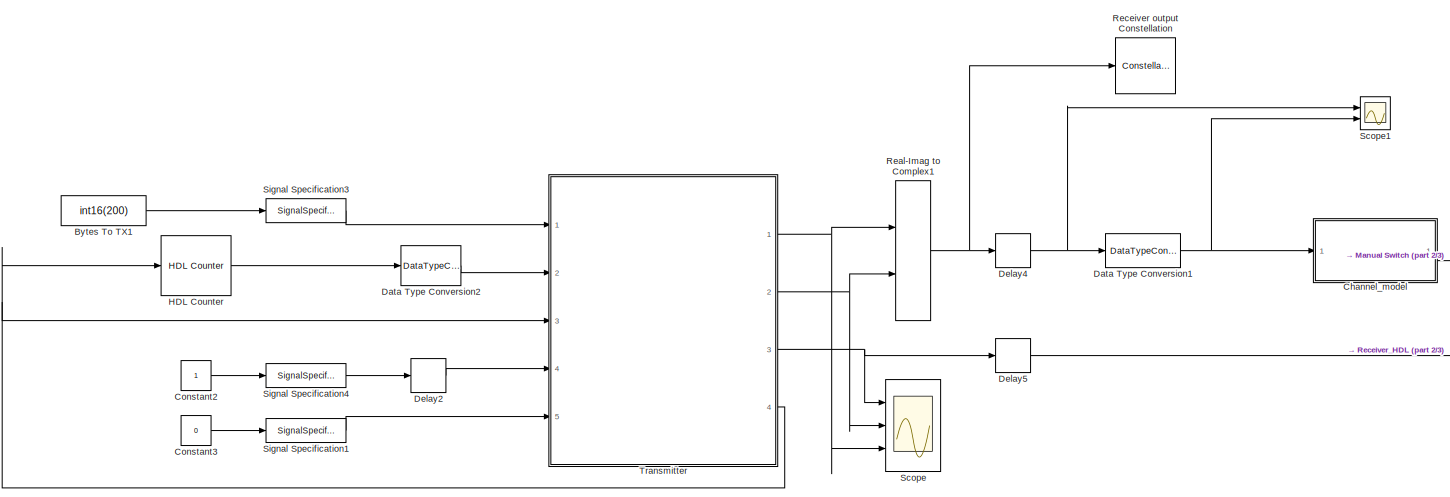
[diagram: root canvas - part 1/3, left side, full height]
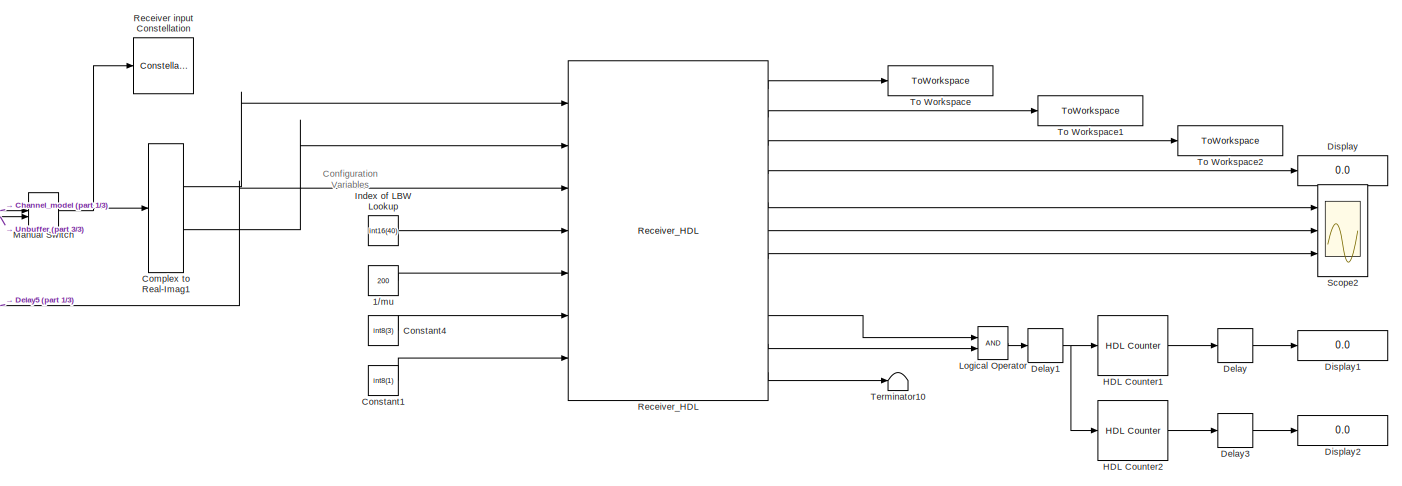
[diagram: root canvas - part 2/3, right side, full height]
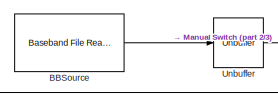
[diagram: root canvas - part 3/3, central region]
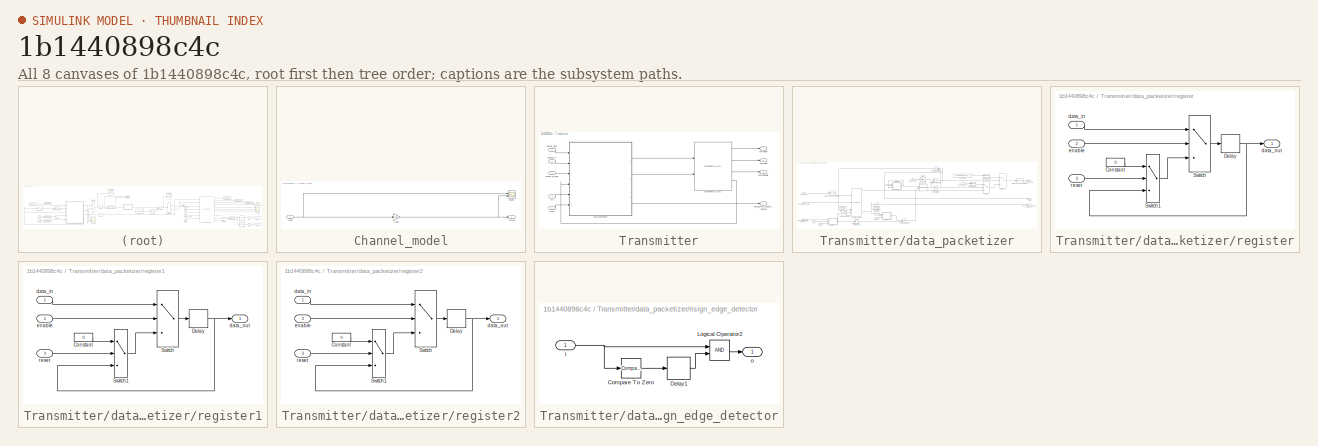
[diagram: thumbnail index - all 8 canvases of the model, root first then tree order]
MODEL slx_1b1440898c4c
KIND model
CONFIG AbsTol = auto
CONFIG EnableMultiTasking = off
CONFIG FixedStep = auto
CONFIG InitFcn = modelSettings
CONFIG MaxStep = auto
CONFIG MinStep = auto
CONFIG RelTol = 1e-3
CONFIG SampleTimeConstraint = Unconstrained
CONFIG Solver = FixedStepDiscrete
CONFIG SolverName = FixedStepDiscrete
CONFIG StartTime = 0.0
CONFIG StopTime = 1
BLOCK [Constant] 1//mu
  OutDataTypeStr = int16
  SampleTime = -1
  Value = 200
BLOCK [Reference] BBSource  REF=commsource2/Baseband File Reader
  Ports = [0, 1]
  SourceBlock = commsource2/Baseband File Reader
  SourceProductBaseCode = CM
  SourceProductName = Communications System Toolbox
  SourceType = Baseband File Reader
BLOCK [Constant] Bytes To TX1
  SampleTime = -1
  Value = int16(200)
BLOCK [SubSystem] Channel_model
  Ports = [1, 1]
  RequestExecContextInheritance = off
BLOCK [Gain] Channel_model/Gain1
  Gain = 0.06
  OutDataTypeStr = int16
  ParamDataTypeStr = Inherit: Inherit via internal rule
  SaturateOnIntegerOverflow = off
BLOCK [Inport] Channel_model/Input
  IconDisplay = Port number
BLOCK [Outport] Channel_model/Output
  IconDisplay = Port number
BLOCK [Scope] Channel_model/Scope
  Floating = off
  NumInputPorts = 2
  Ports = [2]
  ScopeSpecificationString = Simulink.scopes.TimeScopeBlockCfg('CurrentConfiguration', extmgr.ConfigurationSet(extmgr.Configuration('Core','General UI',true),extmgr.Configuration('Core','Source UI',true),extmgr.Configuration('Sources','WiredSimulink',true,'DataLoggingVariableName','ScopeData1'),extmgr.Configuration('Visuals','Time Domain',true,'SerializedDisplays',{struct('MinYLimReal','-10572.375','MaxYLimReal','10571.375','...<+2043ch>
BLOCK [ComplexToRealImag] Complex to Real-Imag1
  Ports = [1, 2]
BLOCK [Constant] Constant1
  SampleTime = 1/RadioSampleRate
  Value = int8(1)
BLOCK [Constant] Constant2
  OutDataTypeStr = boolean
  SampleTime = -1
BLOCK [Constant] Constant3
  OutDataTypeStr = boolean
  SampleTime = -1
  Value = 0
BLOCK [Constant] Constant4
  SampleTime = 1/RadioSampleRate
  Value = int8(3)
BLOCK [DataTypeConversion] Data Type Conversion1
  ConvertRealWorld = Stored Integer (SI)
  OutDataTypeStr = int16
  RndMeth = Floor
  SaturateOnIntegerOverflow = off
BLOCK [DataTypeConversion] Data Type Conversion2
  OutDataTypeStr = fixdt(0,64,0)
  RndMeth = Floor
  SaturateOnIntegerOverflow = off
BLOCK [Delay] Delay
  InputPortMap = u0
  Ports = [1, 1]
BLOCK [Delay] Delay1
  InputPortMap = u0
  Ports = [1, 1]
BLOCK [Delay] Delay2
  DelayLength = 500
  InputPortMap = u0
  Ports = [1, 1]
BLOCK [Delay] Delay3
  InputPortMap = u0
  Ports = [1, 1]
BLOCK [Delay] Delay4
  DelayLength = 1
  InputPortMap = u0
  Ports = [1, 1]
BLOCK [Delay] Delay5
  DelayLength = 1
  InputPortMap = u0
  Ports = [1, 1]
BLOCK [Display] Display
  Decimation = 1
  Ports = [1]
BLOCK [Display] Display1
  Decimation = 1
  Ports = [1]
BLOCK [Display] Display2
  Decimation = 1
  Ports = [1]
BLOCK [Reference] HDL Counter  REF=hdlsllib/Sources/HDL Counter
  Ports = [1, 1]
  SourceBlock = hdlsllib/Sources/HDL Counter
  SourceProductBaseCode = HD
  SourceProductName = HDL Coder
  SourceType = HDL Counter
BLOCK [Reference] HDL Counter1  REF=hdlsllib/Sources/HDL Counter
  Ports = [1, 1]
  SourceBlock = hdlsllib/Sources/HDL Counter
  SourceProductBaseCode = HD
  SourceProductName = HDL Coder
  SourceType = HDL Counter
BLOCK [Reference] HDL Counter2  REF=hdlsllib/Sources/HDL Counter
  Ports = [1, 1]
  SourceBlock = hdlsllib/Sources/HDL Counter
  SourceProductBaseCode = HD
  SourceProductName = HDL Coder
  SourceType = HDL Counter
BLOCK [Constant] Index of LBW Lookup
  SampleTime = 1/RadioSampleRate
  Value = int16(40)
BLOCK [Logic] Logical Operator
  AllPortsSameDT = off
  OutDataTypeStr = boolean
  Ports = [2, 1]
BLOCK [ManualSwitch] Manual Switch
BLOCK [RealImagToComplex] Real-Imag to Complex1
  Ports = [2, 1]
BLOCK [ConstellationDiagram] Receiver input Constellation
  Ports = [1]
  ScopeSpecificationString = comm.scopes.ConstellationDiagramBlockCfg('CurrentConfiguration', extmgr.ConfigurationSet(extmgr.Configuration('Core','General UI',true),extmgr.Configuration('Core','Source UI',true),extmgr.Configuration('Sources','WiredSimulink',true),extmgr.Configuration('Sources','File',false),extmgr.Configuration('Sources','Workspace',false),extmgr.Configuration('Sources','Streaming',false),extmgr.Configuration...<+2525ch>
BLOCK [ConstellationDiagram] Receiver output Constellation
  Ports = [1]
  ScopeSpecificationString = comm.scopes.ConstellationDiagramBlockCfg('CurrentConfiguration', extmgr.ConfigurationSet(extmgr.Configuration('Core','General UI',true),extmgr.Configuration('Core','Source UI',true),extmgr.Configuration('Sources','WiredSimulink',true),extmgr.Configuration('Sources','File',false),extmgr.Configuration('Sources','Workspace',false),extmgr.Configuration('Sources','Streaming',false),extmgr.Configuration...<+2541ch>
BLOCK [Reference] Receiver_HDL  REF=RxTxFixedPointLibrary/Receiver_HDL
  Ports = [7, 11]
  SourceBlock = RxTxFixedPointLibrary/Receiver_HDL
BLOCK [Scope] Scope
  Floating = off
  NumInputPorts = 3
  Ports = [3]
  ScopeSpecificationString = Simulink.scopes.TimeScopeBlockCfg('CurrentConfiguration', extmgr.ConfigurationSet(extmgr.Configuration('Core','General UI',true),extmgr.Configuration('Core','Source UI',true),extmgr.Configuration('Sources','WiredSimulink',true),extmgr.Configuration('Visuals','Time Domain',true,'SerializedDisplays',{struct('MinYLimReal','0.9','MaxYLimReal','1.1','YLabelReal','','MinYLimMag','0.9','MaxYLimMag','1.1'...<+1995ch>
BLOCK [Scope] Scope1
  Floating = off
  NumInputPorts = 2
  Ports = [2]
  ScopeSpecificationString = Simulink.scopes.TimeScopeBlockCfg('CurrentConfiguration', extmgr.ConfigurationSet(extmgr.Configuration('Core','General UI',true),extmgr.Configuration('Core','Source UI',true),extmgr.Configuration('Sources','WiredSimulink',true,'DataLoggingVariableName','ScopeData2'),extmgr.Configuration('Visuals','Time Domain',true),extmgr.Configuration('Tools','Plot Navigation',true),extmgr.Configuration('Tools',...<+40ch>
BLOCK [Scope] Scope2
  Floating = off
  NumInputPorts = 3
  Ports = [3]
  ScopeSpecificationString = Simulink.scopes.TimeScopeBlockCfg('CurrentConfiguration', extmgr.ConfigurationSet(extmgr.Configuration('Core','General UI',true),extmgr.Configuration('Core','Source UI',true),extmgr.Configuration('Sources','WiredSimulink',true,'DataLoggingVariableName','ScopeData1'),extmgr.Configuration('Visuals','Time Domain',true),extmgr.Configuration('Tools','Plot Navigation',true),extmgr.Configuration('Tools',...<+40ch>
BLOCK [SignalSpecification] Signal Specification1
  OutDataTypeStr = boolean
  SampleTime = 4/RadioSampleRate
BLOCK [SignalSpecification] Signal Specification3
  OutDataTypeStr = int16
  SampleTime = 4/RadioSampleRate
BLOCK [SignalSpecification] Signal Specification4
  OutDataTypeStr = boolean
  SampleTime = 4/RadioSampleRate
BLOCK [Terminator] Terminator10
BLOCK [ToWorkspace] To Workspace
  MaxDataPoints = inf
  Ports = [1]
  SampleTime = -1
  SaveFormat = Timeseries
  VariableName = rx_packet
BLOCK [ToWorkspace] To Workspace1
  MaxDataPoints = inf
  Ports = [1]
  SampleTime = -1
  SaveFormat = Timeseries
  VariableName = rx_valid
BLOCK [ToWorkspace] To Workspace2
  MaxDataPoints = inf
  Ports = [1]
  SampleTime = -1
  SaveFormat = Timeseries
  VariableName = rx_sync
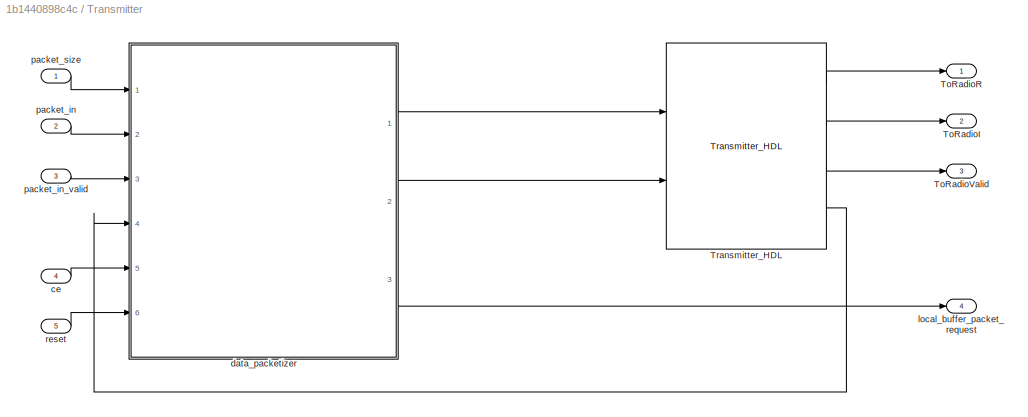
BLOCK [SubSystem] Transmitter
  Ports = [5, 4]
  RequestExecContextInheritance = off
BLOCK [Outport] Transmitter/ToRadioI
  IconDisplay = Port number
  Port = 2
BLOCK [Outport] Transmitter/ToRadioR
  IconDisplay = Port number
BLOCK [Outport] Transmitter/ToRadioValid
  IconDisplay = Port number
  Port = 3
BLOCK [Reference] Transmitter/Transmitter_HDL  REF=RxTxFixedPointLibrary/Transmitter_HDL
  Ports = [2, 4]
  SourceBlock = RxTxFixedPointLibrary/Transmitter_HDL
BLOCK [Inport] Transmitter/ce
  IconDisplay = Port number
  Port = 4
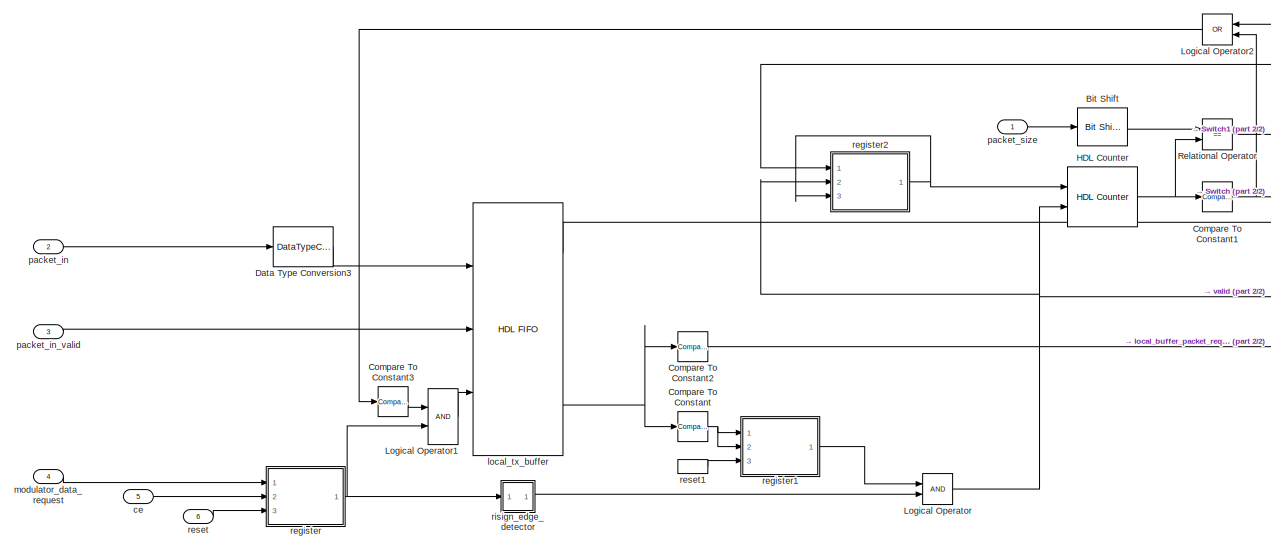
[diagram: Transmitter/data_packetizer - part 1/2, left side, full height]
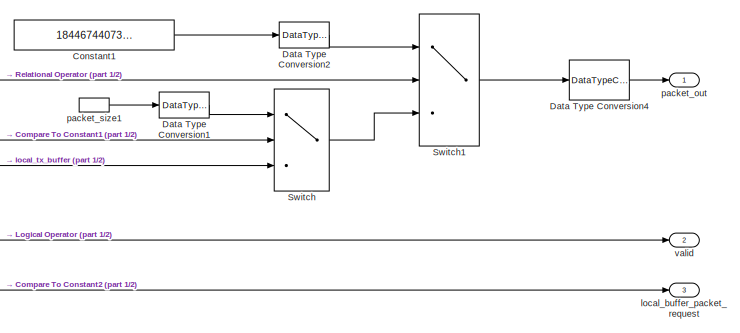
[diagram: Transmitter/data_packetizer - part 2/2, middle right region]
BLOCK [SubSystem] Transmitter/data_packetizer
  Ports = [6, 3]
  RequestExecContextInheritance = off
BLOCK [Reference] Transmitter/data_packetizer/Bit Shift  REF=hdlsllib/Logic and Bit
Operations/Bit Shift
  Ports = [1, 1]
  SourceBlock = hdlsllib/Logic and Bit\nOperations/Bit Shift
  SourceProductBaseCode = HD
  SourceProductName = HDL Coder
  SourceType = Bit Shift
BLOCK [Reference] Transmitter/data_packetizer/Compare To Constant  REF=simulink/Logic and Bit
Operations/Compare
To Constant
  Ports = [1, 1]
  SourceBlock = simulink/Logic and Bit\nOperations/Compare\nTo Constant
  SourceProductBaseCode = SL
  SourceProductName = Simulink
  SourceType = Compare To Constant
BLOCK [Reference] Transmitter/data_packetizer/Compare To Constant1  REF=simulink/Logic and Bit
Operations/Compare
To Constant
  Ports = [1, 1]
  SourceBlock = simulink/Logic and Bit\nOperations/Compare\nTo Constant
  SourceProductBaseCode = SL
  SourceProductName = Simulink
  SourceType = Compare To Constant
BLOCK [Reference] Transmitter/data_packetizer/Compare To Constant2  REF=simulink/Logic and Bit
Operations/Compare
To Constant
  Ports = [1, 1]
  SourceBlock = simulink/Logic and Bit\nOperations/Compare\nTo Constant
  SourceProductBaseCode = SL
  SourceProductName = Simulink
  SourceType = Compare To Constant
BLOCK [Reference] Transmitter/data_packetizer/Compare To Constant3  REF=simulink/Logic and Bit
Operations/Compare
To Constant
  Ports = [1, 1]
  SourceBlock = simulink/Logic and Bit\nOperations/Compare\nTo Constant
  SourceProductBaseCode = SL
  SourceProductName = Simulink
  SourceType = Compare To Constant
BLOCK [Constant] Transmitter/data_packetizer/Constant1
  SampleTime = -1
  Value = 18446744073709551615
BLOCK [DataTypeConversion] Transmitter/data_packetizer/Data Type Conversion1
  OutDataTypeStr = fixdt(0,64,0)
  RndMeth = Floor
  SaturateOnIntegerOverflow = off
BLOCK [DataTypeConversion] Transmitter/data_packetizer/Data Type Conversion2
  OutDataTypeStr = fixdt(0,64,0)
  RndMeth = Floor
BLOCK [DataTypeConversion] Transmitter/data_packetizer/Data Type Conversion3
  OutDataTypeStr = fixdt(0,64,0)
  RndMeth = Floor
  SaturateOnIntegerOverflow = off
BLOCK [DataTypeConversion] Transmitter/data_packetizer/Data Type Conversion4
  OutDataTypeStr = fixdt(0,64,0)
  RndMeth = Floor
  SaturateOnIntegerOverflow = off
BLOCK [Reference] Transmitter/data_packetizer/HDL Counter  REF=hdlsllib/Sources/HDL Counter
  Ports = [2, 1]
  SourceBlock = hdlsllib/Sources/HDL Counter
  SourceProductBaseCode = HD
  SourceProductName = HDL Coder
  SourceType = HDL Counter
BLOCK [Logic] Transmitter/data_packetizer/Logical Operator
  AllPortsSameDT = off
  OutDataTypeStr = boolean
  Ports = [2, 1]
BLOCK [Logic] Transmitter/data_packetizer/Logical Operator1
  AllPortsSameDT = off
  OutDataTypeStr = boolean
  Ports = [2, 1]
BLOCK [Logic] Transmitter/data_packetizer/Logical Operator2
  AllPortsSameDT = off
  Operator = OR
  OutDataTypeStr = boolean
  Ports = [2, 1]
BLOCK [RelationalOperator] Transmitter/data_packetizer/Relational Operator
  InputSameDT = off
  Operator = ==
  OutDataTypeStr = boolean
  Ports = [2, 1]
BLOCK [Switch] Transmitter/data_packetizer/Switch
  InputSameDT = off
  SaturateOnIntegerOverflow = off
BLOCK [Switch] Transmitter/data_packetizer/Switch1
  InputSameDT = off
  SaturateOnIntegerOverflow = off
BLOCK [Inport] Transmitter/data_packetizer/ce
  IconDisplay = Port number
  Port = 5
BLOCK [Outport] Transmitter/data_packetizer/local_buffer_packet_request
  IconDisplay = Port number
  Port = 3
BLOCK [Reference] Transmitter/data_packetizer/local_tx_buffer  REF=hdlsllib/HDL RAMs/HDL FIFO
  Ports = [3, 4]
  SourceBlock = hdlsllib/HDL RAMs/HDL FIFO
  SourceProductBaseCode = HD
  SourceProductName = HDL Coder
  SourceType = HDL_FIFO
BLOCK [Inport] Transmitter/data_packetizer/modulator_data_request
  IconDisplay = Port number
  Port = 4
BLOCK [Inport] Transmitter/data_packetizer/packet_in
  IconDisplay = Port number
  Port = 2
BLOCK [Inport] Transmitter/data_packetizer/packet_in_valid
  IconDisplay = Port number
  Port = 3
BLOCK [Outport] Transmitter/data_packetizer/packet_out
  IconDisplay = Port number
BLOCK [Inport] Transmitter/data_packetizer/packet_size
  IconDisplay = Port number
BLOCK [InportShadow] Transmitter/data_packetizer/packet_size1
  IconDisplay = Port number
BLOCK [SubSystem] Transmitter/data_packetizer/register
  Ports = [3, 1]
  RequestExecContextInheritance = off
BLOCK [Constant] Transmitter/data_packetizer/register/Constant
  Value = 0
BLOCK [Delay] Transmitter/data_packetizer/register/Delay
  DelayLength = 1
  InitialCondition = 0
  InputPortMap = u0
  Ports = [1, 1]
BLOCK [Switch] Transmitter/data_packetizer/register/Switch
  Criteria = u2 > Threshold
  InputSameDT = off
  SaturateOnIntegerOverflow = off
BLOCK [Switch] Transmitter/data_packetizer/register/Switch1
  Criteria = u2 > Threshold
  InputSameDT = off
  SaturateOnIntegerOverflow = off
BLOCK [Inport] Transmitter/data_packetizer/register/data_in
  IconDisplay = Port number
BLOCK [Outport] Transmitter/data_packetizer/register/data_out
  IconDisplay = Port number
BLOCK [Inport] Transmitter/data_packetizer/register/enable
  IconDisplay = Port number
  Port = 2
BLOCK [Inport] Transmitter/data_packetizer/register/reset
  IconDisplay = Port number
  Port = 3
BLOCK [SubSystem] Transmitter/data_packetizer/register1
  Ports = [3, 1]
  RequestExecContextInheritance = off
BLOCK [Constant] Transmitter/data_packetizer/register1/Constant
  Value = 0
BLOCK [Delay] Transmitter/data_packetizer/register1/Delay
  DelayLength = 1
  InitialCondition = 0
  InputPortMap = u0
  Ports = [1, 1]
BLOCK [Switch] Transmitter/data_packetizer/register1/Switch
  Criteria = u2 > Threshold
  InputSameDT = off
  SaturateOnIntegerOverflow = off
BLOCK [Switch] Transmitter/data_packetizer/register1/Switch1
  Criteria = u2 > Threshold
  InputSameDT = off
  SaturateOnIntegerOverflow = off
BLOCK [Inport] Transmitter/data_packetizer/register1/data_in
  IconDisplay = Port number
BLOCK [Outport] Transmitter/data_packetizer/register1/data_out
  IconDisplay = Port number
BLOCK [Inport] Transmitter/data_packetizer/register1/enable
  IconDisplay = Port number
  Port = 2
BLOCK [Inport] Transmitter/data_packetizer/register1/reset
  IconDisplay = Port number
  Port = 3
BLOCK [SubSystem] Transmitter/data_packetizer/register2
  Ports = [3, 1]
  RequestExecContextInheritance = off
BLOCK [Constant] Transmitter/data_packetizer/register2/Constant
  Value = 0
BLOCK [Delay] Transmitter/data_packetizer/register2/Delay
  DelayLength = 1
  InitialCondition = 0
  InputPortMap = u0
  Ports = [1, 1]
BLOCK [Switch] Transmitter/data_packetizer/register2/Switch
  Criteria = u2 > Threshold
  InputSameDT = off
  SaturateOnIntegerOverflow = off
BLOCK [Switch] Transmitter/data_packetizer/register2/Switch1
  Criteria = u2 > Threshold
  InputSameDT = off
  SaturateOnIntegerOverflow = off
BLOCK [Inport] Transmitter/data_packetizer/register2/data_in
  IconDisplay = Port number
BLOCK [Outport] Transmitter/data_packetizer/register2/data_out
  IconDisplay = Port number
BLOCK [Inport] Transmitter/data_packetizer/register2/enable
  IconDisplay = Port number
  Port = 2
BLOCK [Inport] Transmitter/data_packetizer/register2/reset
  IconDisplay = Port number
  Port = 3
BLOCK [Inport] Transmitter/data_packetizer/reset
  IconDisplay = Port number
  Port = 6
BLOCK [InportShadow] Transmitter/data_packetizer/reset1
  IconDisplay = Port number
  Port = 6
BLOCK [SubSystem] Transmitter/data_packetizer/risign_edge_detector
  Ports = [1, 1]
  RequestExecContextInheritance = off
BLOCK [Reference] Transmitter/data_packetizer/risign_edge_detector/Compare To Zero  REF=simulink/Logic and Bit
Operations/Compare
To Zero
  Ports = [1, 1]
  SourceBlock = simulink/Logic and Bit\nOperations/Compare\nTo Zero
  SourceProductBaseCode = SL
  SourceProductName = Simulink
  SourceType = Compare To Zero
BLOCK [Delay] Transmitter/data_packetizer/risign_edge_detector/Delay1
  DelayLength = 1
  InitialCondition = 0
  InputPortMap = u0
  Ports = [1, 1]
BLOCK [Logic] Transmitter/data_packetizer/risign_edge_detector/Logical Operator2
  AllPortsSameDT = off
  OutDataTypeStr = boolean
  Ports = [2, 1]
BLOCK [Inport] Transmitter/data_packetizer/risign_edge_detector/i
  IconDisplay = Port number
BLOCK [Outport] Transmitter/data_packetizer/risign_edge_detector/o
  IconDisplay = Port number
BLOCK [Outport] Transmitter/data_packetizer/valid
  IconDisplay = Port number
  Port = 2
BLOCK [Outport] Transmitter/local_buffer_packet_request
  IconDisplay = Port number
  Port = 4
BLOCK [Inport] Transmitter/packet_in
  IconDisplay = Port number
  Port = 2
BLOCK [Inport] Transmitter/packet_in_valid
  IconDisplay = Port number
  Port = 3
BLOCK [Inport] Transmitter/packet_size
  IconDisplay = Port number
BLOCK [Inport] Transmitter/reset
  IconDisplay = Port number
  Port = 5
BLOCK [Unbuffer] Unbuffer
  Ports = [1, 1]
ANNOTATION (root): Configuration Variables
LINE 1//mu:1 -> Receiver_HDL:5
LINE BBSource:1 -> Unbuffer:1
LINE Bytes To TX1:1 -> Signal Specification3:1
NET Channel_model/Gain1:1 -> Channel_model/Output:1, Channel_model/Scope:2
NET Channel_model/Input:1 -> Channel_model/Gain1:1, Channel_model/Scope:1
LINE Channel_model:1 -> Manual Switch:1
LINE Complex to Real-Imag1:1 -> Receiver_HDL:1
LINE Complex to Real-Imag1:2 -> Receiver_HDL:2
LINE Constant1:1 -> Receiver_HDL:7
LINE Constant2:1 -> Signal Specification4:1
LINE Constant3:1 -> Signal Specification1:1
LINE Constant4:1 -> Receiver_HDL:6
NET Data Type Conversion1:1 -> Channel_model:1, Scope1:2
LINE Data Type Conversion2:1 -> Transmitter:2
NET Delay1:1 -> HDL Counter1:1, HDL Counter2:1
LINE Delay2:1 -> Transmitter:4
LINE Delay3:1 -> Display2:1
NET Delay4:1 -> Data Type Conversion1:1, Scope1:1
LINE Delay5:1 -> Receiver_HDL:3
LINE Delay:1 -> Display1:1
LINE HDL Counter1:1 -> Delay:1
LINE HDL Counter2:1 -> Delay3:1
LINE HDL Counter:1 -> Data Type Conversion2:1
LINE Index of LBW Lookup:1 -> Receiver_HDL:4
LINE Logical Operator:1 -> Delay1:1
NET Manual Switch:1 -> Complex to Real-Imag1:1, Receiver input Constellation:1
NET Real-Imag to Complex1:1 -> Delay4:1, Receiver output Constellation:1
LINE Receiver_HDL:1 -> To Workspace:1
LINE Receiver_HDL:10 -> Logical Operator:2
LINE Receiver_HDL:11 -> Terminator10:1
LINE Receiver_HDL:2 -> To Workspace1:1
LINE Receiver_HDL:3 -> To Workspace2:1
LINE Receiver_HDL:4 -> Display:1
LINE Receiver_HDL:5 -> Scope2:1
LINE Receiver_HDL:6 -> Scope2:2
LINE Receiver_HDL:7 -> Scope2:3
LINE Receiver_HDL:9 -> Logical Operator:1
LINE Signal Specification1:1 -> Transmitter:5
LINE Signal Specification3:1 -> Transmitter:1
LINE Signal Specification4:1 -> Delay2:1
LINE Transmitter/Transmitter_HDL:1 -> Transmitter/ToRadioR:1
LINE Transmitter/Transmitter_HDL:2 -> Transmitter/ToRadioI:1
LINE Transmitter/Transmitter_HDL:3 -> Transmitter/ToRadioValid:1
LINE Transmitter/Transmitter_HDL:4 -> Transmitter/data_packetizer:4
LINE Transmitter/ce:1 -> Transmitter/data_packetizer:5
LINE Transmitter/data_packetizer/Bit Shift:1 -> Transmitter/data_packetizer/Relational Operator:1
NET Transmitter/data_packetizer/Compare To Constant1:1 -> Transmitter/data_packetizer/Logical Operator2:2, Transmitter/data_packetizer/Switch:2
LINE Transmitter/data_packetizer/Compare To Constant2:1 -> Transmitter/data_packetizer/local_buffer_packet_request:1
LINE Transmitter/data_packetizer/Compare To Constant3:1 -> Transmitter/data_packetizer/Logical Operator1:1
NET Transmitter/data_packetizer/Compare To Constant:1 -> Transmitter/data_packetizer/register1:1, Transmitter/data_packetizer/register1:2
LINE Transmitter/data_packetizer/Constant1:1 -> Transmitter/data_packetizer/Data Type Conversion2:1
LINE Transmitter/data_packetizer/Data Type Conversion1:1 -> Transmitter/data_packetizer/Switch:1
LINE Transmitter/data_packetizer/Data Type Conversion2:1 -> Transmitter/data_packetizer/Switch1:1
LINE Transmitter/data_packetizer/Data Type Conversion3:1 -> Transmitter/data_packetizer/local_tx_buffer:1
LINE Transmitter/data_packetizer/Data Type Conversion4:1 -> Transmitter/data_packetizer/packet_out:1
NET Transmitter/data_packetizer/HDL Counter:1 -> Transmitter/data_packetizer/Compare To Constant1:1, Transmitter/data_packetizer/Relational Operator:2
LINE Transmitter/data_packetizer/Logical Operator1:1 -> Transmitter/data_packetizer/local_tx_buffer:3
LINE Transmitter/data_packetizer/Logical Operator2:1 -> Transmitter/data_packetizer/Compare To Constant3:1
NET Transmitter/data_packetizer/Logical Operator:1 -> Transmitter/data_packetizer/HDL Counter:2, Transmitter/data_packetizer/register2:2, Transmitter/data_packetizer/valid:1
NET Transmitter/data_packetizer/Relational Operator:1 -> Transmitter/data_packetizer/Logical Operator2:1, Transmitter/data_packetizer/Switch1:2, Transmitter/data_packetizer/register2:1
LINE Transmitter/data_packetizer/Switch1:1 -> Transmitter/data_packetizer/Data Type Conversion4:1
LINE Transmitter/data_packetizer/Switch:1 -> Transmitter/data_packetizer/Switch1:3
LINE Transmitter/data_packetizer/ce:1 -> Transmitter/data_packetizer/register:2
LINE Transmitter/data_packetizer/local_tx_buffer:1 -> Transmitter/data_packetizer/Switch:3
NET Transmitter/data_packetizer/local_tx_buffer:4 -> Transmitter/data_packetizer/Compare To Constant2:1, Transmitter/data_packetizer/Compare To Constant:1
LINE Transmitter/data_packetizer/modulator_data_request:1 -> Transmitter/data_packetizer/register:1
LINE Transmitter/data_packetizer/packet_in:1 -> Transmitter/data_packetizer/Data Type Conversion3:1
LINE Transmitter/data_packetizer/packet_in_valid:1 -> Transmitter/data_packetizer/local_tx_buffer:2
LINE Transmitter/data_packetizer/packet_size1:1 -> Transmitter/data_packetizer/Data Type Conversion1:1
LINE Transmitter/data_packetizer/packet_size:1 -> Transmitter/data_packetizer/Bit Shift:1
LINE Transmitter/data_packetizer/register/Constant:1 -> Transmitter/data_packetizer/register/Switch1:1
NET Transmitter/data_packetizer/register/Delay:1 -> Transmitter/data_packetizer/register/Switch1:3, Transmitter/data_packetizer/register/data_out:1
LINE Transmitter/data_packetizer/register/Switch1:1 -> Transmitter/data_packetizer/register/Switch:3
LINE Transmitter/data_packetizer/register/Switch:1 -> Transmitter/data_packetizer/register/Delay:1
LINE Transmitter/data_packetizer/register/data_in:1 -> Transmitter/data_packetizer/register/Switch:1
LINE Transmitter/data_packetizer/register/enable:1 -> Transmitter/data_packetizer/register/Switch:2
LINE Transmitter/data_packetizer/register/reset:1 -> Transmitter/data_packetizer/register/Switch1:2
LINE Transmitter/data_packetizer/register1/Constant:1 -> Transmitter/data_packetizer/register1/Switch1:1
NET Transmitter/data_packetizer/register1/Delay:1 -> Transmitter/data_packetizer/register1/Switch1:3, Transmitter/data_packetizer/register1/data_out:1
LINE Transmitter/data_packetizer/register1/Switch1:1 -> Transmitter/data_packetizer/register1/Switch:3
LINE Transmitter/data_packetizer/register1/Switch:1 -> Transmitter/data_packetizer/register1/Delay:1
LINE Transmitter/data_packetizer/register1/data_in:1 -> Transmitter/data_packetizer/register1/Switch:1
LINE Transmitter/data_packetizer/register1/enable:1 -> Transmitter/data_packetizer/register1/Switch:2
LINE Transmitter/data_packetizer/register1/reset:1 -> Transmitter/data_packetizer/register1/Switch1:2
LINE Transmitter/data_packetizer/register1:1 -> Transmitter/data_packetizer/Logical Operator:1
LINE Transmitter/data_packetizer/register2/Constant:1 -> Transmitter/data_packetizer/register2/Switch1:1
NET Transmitter/data_packetizer/register2/Delay:1 -> Transmitter/data_packetizer/register2/Switch1:3, Transmitter/data_packetizer/register2/data_out:1
LINE Transmitter/data_packetizer/register2/Switch1:1 -> Transmitter/data_packetizer/register2/Switch:3
LINE Transmitter/data_packetizer/register2/Switch:1 -> Transmitter/data_packetizer/register2/Delay:1
LINE Transmitter/data_packetizer/register2/data_in:1 -> Transmitter/data_packetizer/register2/Switch:1
LINE Transmitter/data_packetizer/register2/enable:1 -> Transmitter/data_packetizer/register2/Switch:2
LINE Transmitter/data_packetizer/register2/reset:1 -> Transmitter/data_packetizer/register2/Switch1:2
NET Transmitter/data_packetizer/register2:1 -> Transmitter/data_packetizer/HDL Counter:1, Transmitter/data_packetizer/register2:3
NET Transmitter/data_packetizer/register:1 -> Transmitter/data_packetizer/Logical Operator1:2, Transmitter/data_packetizer/risign_edge_detector:1
LINE Transmitter/data_packetizer/reset1:1 -> Transmitter/data_packetizer/register1:3
LINE Transmitter/data_packetizer/reset:1 -> Transmitter/data_packetizer/register:3
LINE Transmitter/data_packetizer/risign_edge_detector/Compare To Zero:1 -> Transmitter/data_packetizer/risign_edge_detector/Delay1:1
LINE Transmitter/data_packetizer/risign_edge_detector/Delay1:1 -> Transmitter/data_packetizer/risign_edge_detector/Logical Operator2:2
LINE Transmitter/data_packetizer/risign_edge_detector/Logical Operator2:1 -> Transmitter/data_packetizer/risign_edge_detector/o:1
NET Transmitter/data_packetizer/risign_edge_detector/i:1 -> Transmitter/data_packetizer/risign_edge_detector/Compare To Zero:1, Transmitter/data_packetizer/risign_edge_detector/Logical Operator2:1
LINE Transmitter/data_packetizer/risign_edge_detector:1 -> Transmitter/data_packetizer/Logical Operator:2
LINE Transmitter/data_packetizer:1 -> Transmitter/Transmitter_HDL:1
LINE Transmitter/data_packetizer:2 -> Transmitter/Transmitter_HDL:2
LINE Transmitter/data_packetizer:3 -> Transmitter/local_buffer_packet_request:1
LINE Transmitter/packet_in:1 -> Transmitter/data_packetizer:2
LINE Transmitter/packet_in_valid:1 -> Transmitter/data_packetizer:3
LINE Transmitter/packet_size:1 -> Transmitter/data_packetizer:1
LINE Transmitter/reset:1 -> Transmitter/data_packetizer:6
NET Transmitter:1 -> Real-Imag to Complex1:1, Scope:3
NET Transmitter:2 -> Real-Imag to Complex1:2, Scope:2
NET Transmitter:3 -> Delay5:1, Scope:1
NET Transmitter:4 -> HDL Counter:1, Transmitter:3
LINE Unbuffer:1 -> Manual Switch:2
note: NET lines group one-source signal fan-out (src -> all destinations, sorted); 1:1 wires keep LINE
